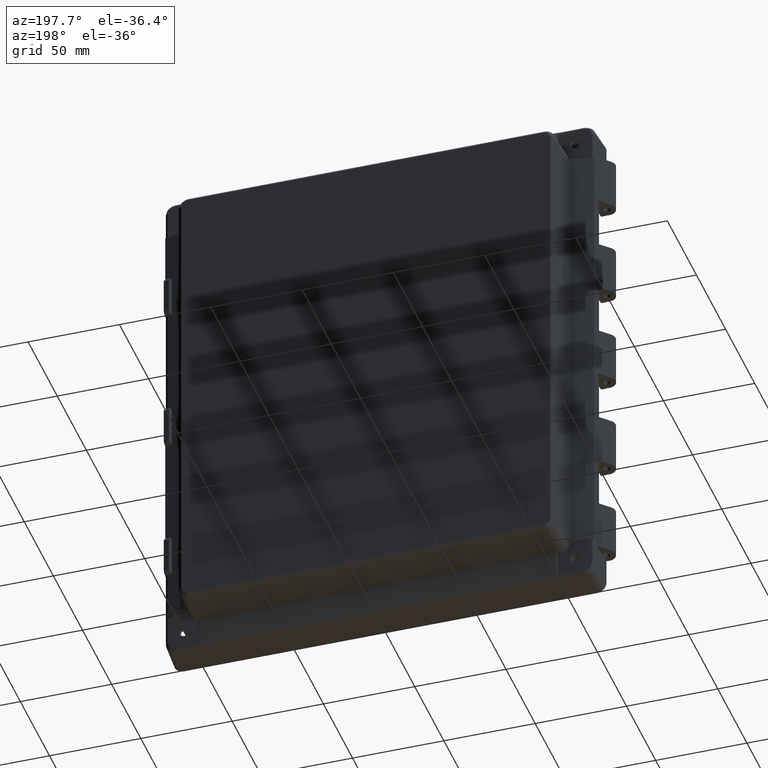
[diagram: clean part render]
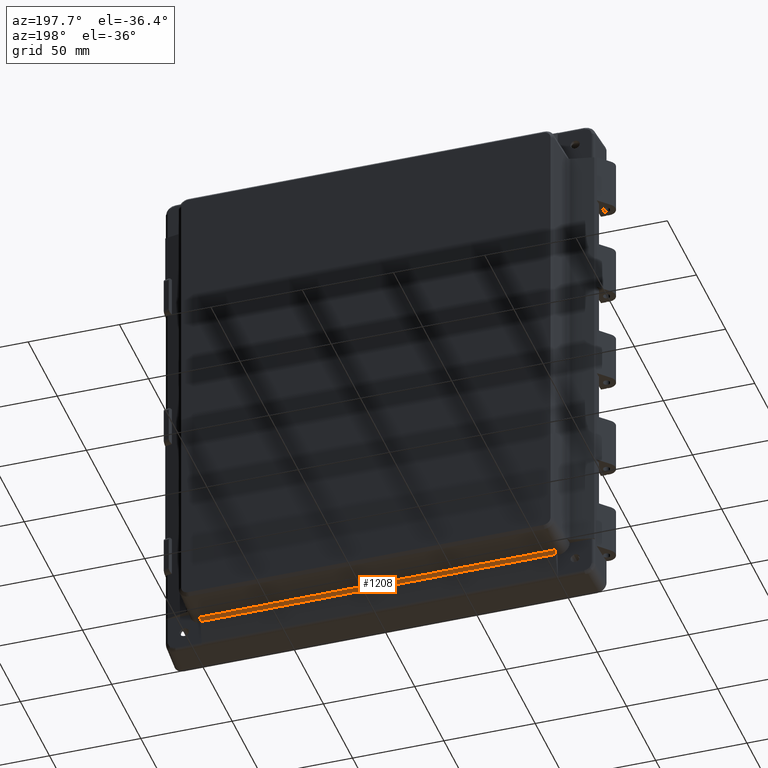
[diagram: same view with one face highlighted and labeled with its STEP entity id]
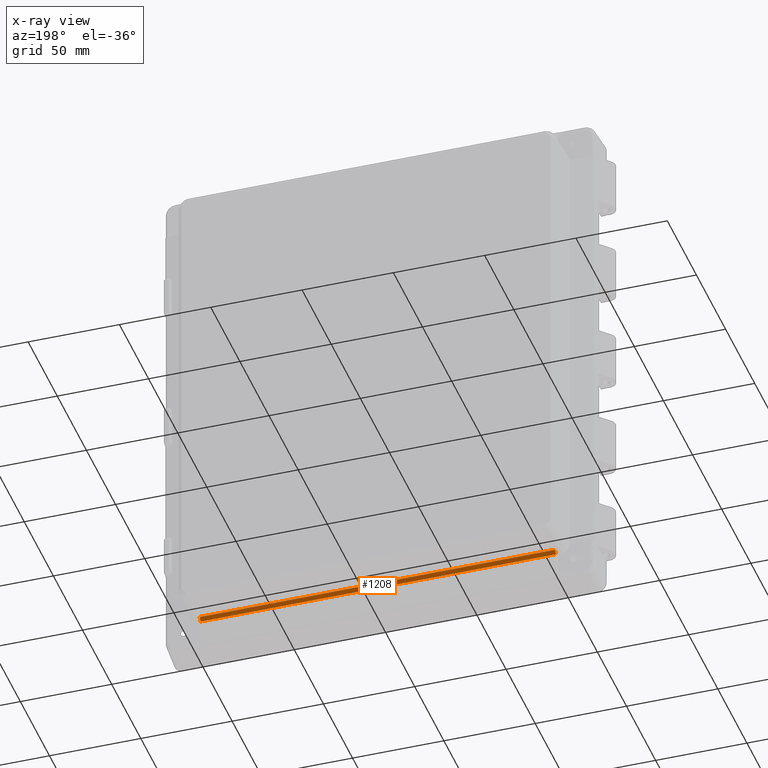
[diagram: x-ray of the same camera — body ghosted, the highlighted face saturated]
A machine part, auxiliary view. The second image highlights one B-rep face of the part: STEP entity #1208.
The next image is the same camera in x-ray: the body ghosted, the highlighted face saturated — about 0% of this face is hidden behind the body in this view.
In plain terms, the highlighted cylindrical surface (edge-blend (fillet) strip) has radius 2 mm, axis along (-1, 0, 0).
Its self-contained STEP definition (entity closure, byte-faithful):
#1143 = VERTEX_POINT ( 'NONE', #5895 ) ;
#1187 = EDGE_CURVE ( 'NONE', #1143, #1215, #5923, .T. ) ;
#1188 = ORIENTED_EDGE ( 'NONE', *, *, #1207, .F. ) ;
#1205 = VERTEX_POINT ( 'NONE', #5946 ) ;
#1207 = EDGE_CURVE ( 'NONE', #1205, #1143, #5945, .T. ) ;
#1208 = ADVANCED_FACE ( 'NONE', ( #5941 ), #5994, .F. ) ;
#1209 = EDGE_LOOP ( 'NONE', ( #1210, #1213, #1216, #1188 ) ) ;
#1210 = ORIENTED_EDGE ( 'NONE', *, *, #1211, .F. ) ;
#1211 = EDGE_CURVE ( 'NONE', #1212, #1205, #5987, .T. ) ;
#1212 = VERTEX_POINT ( 'NONE', #5989 ) ;
#1213 = ORIENTED_EDGE ( 'NONE', *, *, #1214, .F. ) ;
#1214 = EDGE_CURVE ( 'NONE', #1215, #1212, #5988, .T. ) ;
#1215 = VERTEX_POINT ( 'NONE', #5979 ) ;
#1216 = ORIENTED_EDGE ( 'NONE', *, *, #1187, .F. ) ;
#5895 = CARTESIAN_POINT ( 'NONE',  ( 97.31964023982946800, 12.79771748918622800, -131.3136962697293500 ) ) ;
#5918 = CARTESIAN_POINT ( 'NONE',  ( 97.22260077518521400, 14.64934077816795200, -129.7322605818557100 ) ) ;
#5919 = CARTESIAN_POINT ( 'NONE',  ( 97.27186822672912600, 13.70926180100209800, -129.7815280333996400 ) ) ;
#5920 = CARTESIAN_POINT ( 'NONE',  ( 97.30938290335356600, 12.99343912853550800, -130.3928983521702200 ) ) ;
#5921 = CARTESIAN_POINT ( 'NONE',  ( 97.31964023982946800, 12.79771748918622800, -131.3136962697293500 ) ) ;
#5923 =( BOUNDED_CURVE ( )  B_SPLINE_CURVE ( 3, ( #5921, #5920, #5919, #5918 ),
 .UNSPECIFIED., .F., .T. ) 
 B_SPLINE_CURVE_WITH_KNOTS ( ( 4, 4 ),
 ( 3.351032163829108500, 4.660029102824858600 ),
 .UNSPECIFIED. ) 
 CURVE ( )  GEOMETRIC_REPRESENTATION_ITEM ( )  RATIONAL_B_SPLINE_CURVE ( ( 1.000000000000000000, 0.8622355601941561500, 0.8622355601941561500, 1.000000000000000000 ) ) 
 REPRESENTATION_ITEM ( '' )  );
#5941 = FACE_OUTER_BOUND ( 'NONE', #1209, .T. ) ;
#5942 = DIRECTION ( 'NONE',  ( 1.000000000000000000, -0.0000000000000000000, -0.0000000000000000000 ) ) ;
#5943 = VECTOR ( 'NONE', #5942, 1000.000000000000000 ) ;
#5944 = CARTESIAN_POINT ( 'NONE',  ( 97.30291835851906500, 12.79771748918622800, -131.3136962697293500 ) ) ;
#5945 = LINE ( 'NONE', #5944, #5943 ) ;
#5946 = CARTESIAN_POINT ( 'NONE',  ( -97.31964023982946800, 12.79771748918622800, -131.3136962697293500 ) ) ;
#5979 = CARTESIAN_POINT ( 'NONE',  ( 97.22260077518521400, 14.64934077816795200, -129.7322605818557100 ) ) ;
#5980 = DIRECTION ( 'NONE',  ( -1.000000000000000000, 0.0000000000000000000, 0.0000000000000000000 ) ) ;
#5981 = VECTOR ( 'NONE', #5980, 1000.000000000000000 ) ;
#5982 = CARTESIAN_POINT ( 'NONE',  ( -97.30291835851903700, 14.64934077816795200, -129.7322605818557100 ) ) ;
#5983 = CARTESIAN_POINT ( 'NONE',  ( -97.31964023982946800, 12.79771748918622800, -131.3136962697293500 ) ) ;
#5984 = CARTESIAN_POINT ( 'NONE',  ( -97.30938290335355100, 12.99343912853551500, -130.3928983521702500 ) ) ;
#5985 = CARTESIAN_POINT ( 'NONE',  ( -97.27186822672912600, 13.70926180100210000, -129.7815280333996700 ) ) ;
#5986 = CARTESIAN_POINT ( 'NONE',  ( -97.22260077518517100, 14.64934077816795200, -129.7322605818557100 ) ) ;
#5987 =( BOUNDED_CURVE ( )  B_SPLINE_CURVE ( 3, ( #5986, #5985, #5984, #5983 ),
 .UNSPECIFIED., .F., .T. ) 
 B_SPLINE_CURVE_WITH_KNOTS ( ( 4, 4 ),
 ( 4.764748857944519900, 6.073745796940270800 ),
 .UNSPECIFIED. ) 
 CURVE ( )  GEOMETRIC_REPRESENTATION_ITEM ( )  RATIONAL_B_SPLINE_CURVE ( ( 1.000000000000000000, 0.8622355601941560400, 0.8622355601941560400, 1.000000000000000000 ) ) 
 REPRESENTATION_ITEM ( '' )  );
#5988 = LINE ( 'NONE', #5982, #5981 ) ;
#5989 = CARTESIAN_POINT ( 'NONE',  ( -97.22260077518517100, 14.64934077816795200, -129.7322605818557100 ) ) ;
#5990 = DIRECTION ( 'NONE',  ( 0.0000000000000000000, 0.0000000000000000000, 1.000000000000000000 ) ) ;
#5991 = DIRECTION ( 'NONE',  ( -1.000000000000000000, 0.0000000000000000000, 0.0000000000000000000 ) ) ;
#5992 = AXIS2_PLACEMENT_3D ( 'NONE', #5993, #5991, #5990 ) ;
#5993 = CARTESIAN_POINT ( 'NONE',  ( 117.4759222071696300, 14.75401269065383900, -131.7295196513648800 ) ) ;
#5994 = CYLINDRICAL_SURFACE ( 'NONE', #5992, 2.000000000000001800 ) ;